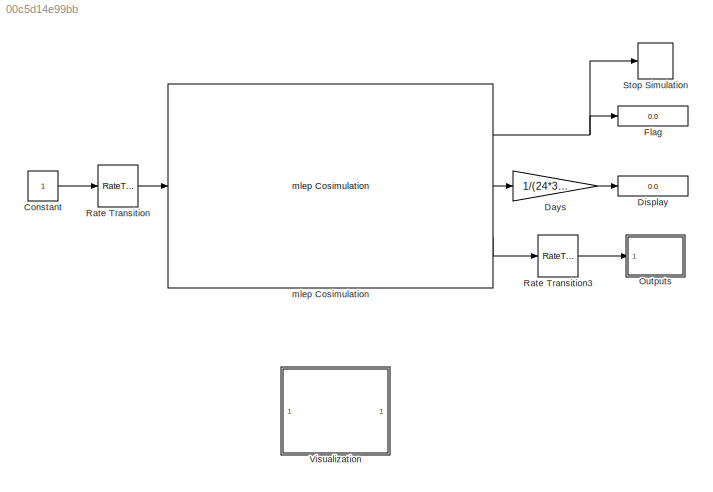
MODEL slx_00c5d14e99bb
KIND model
BLOCK [Constant] Constant
BLOCK [Gain] Days
  Gain = 1/(24*3600)
  OutDataTypeStr = Inherit: Inherit via internal rule
  ParamDataTypeStr = Inherit: Inherit via internal rule
  SaturateOnIntegerOverflow = off
BLOCK [Display] Display
  Decimation = 1
  Ports = [1]
BLOCK [Display] Flag
  Decimation = 1
  Ports = [1]
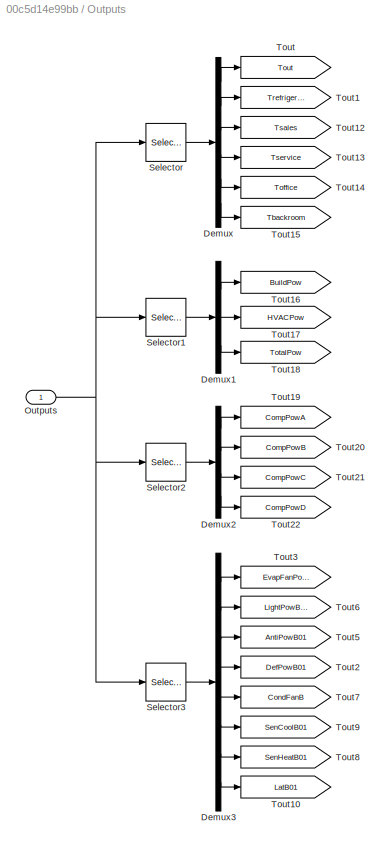
BLOCK [SubSystem] Outputs
  Ports = [1]
  RequestExecContextInheritance = off
BLOCK [Demux] Outputs/Demux
  DisplayOption = bar
  Outputs = 6
  Ports = [1, 6]
BLOCK [Demux] Outputs/Demux1
  DisplayOption = bar
  Outputs = 3
  Ports = [1, 3]
BLOCK [Demux] Outputs/Demux2
  DisplayOption = bar
  Ports = [1, 4]
BLOCK [Demux] Outputs/Demux3
  DisplayOption = bar
  Outputs = 8
  Ports = [1, 8]
BLOCK [Inport] Outputs/Outputs
  IconDisplay = Port number
BLOCK [Selector] Outputs/Selector
  Indices = [1:6]
  InputPortWidth = 21
  Ports = [1, 1]
BLOCK [Selector] Outputs/Selector1
  Indices = [7:9]
  InputPortWidth = 21
  Ports = [1, 1]
BLOCK [Selector] Outputs/Selector2
  Indices = [10:13]
  InputPortWidth = 21
  Ports = [1, 1]
BLOCK [Selector] Outputs/Selector3
  Indices = [14:21]
  InputPortWidth = 21
  Ports = [1, 1]
BLOCK [Goto] Outputs/Tout
  GotoTag = Tout
  TagVisibility = global
BLOCK [Goto] Outputs/Tout1
  GotoTag = Trefrigeration
  TagVisibility = global
BLOCK [Goto] Outputs/Tout10
  GotoTag = LatB01
  TagVisibility = global
BLOCK [Goto] Outputs/Tout12
  GotoTag = Tsales
  TagVisibility = global
BLOCK [Goto] Outputs/Tout13
  GotoTag = Tservice
  TagVisibility = global
BLOCK [Goto] Outputs/Tout14
  GotoTag = Toffice
  TagVisibility = global
BLOCK [Goto] Outputs/Tout15
  GotoTag = Tbackroom
  TagVisibility = global
BLOCK [Goto] Outputs/Tout16
  GotoTag = BuildPow
  TagVisibility = global
BLOCK [Goto] Outputs/Tout17
  GotoTag = HVACPow
  TagVisibility = global
BLOCK [Goto] Outputs/Tout18
  GotoTag = TotalPow
  TagVisibility = global
BLOCK [Goto] Outputs/Tout19
  GotoTag = CompPowA
  TagVisibility = global
BLOCK [Goto] Outputs/Tout2
  GotoTag = DefPowB01
  TagVisibility = global
BLOCK [Goto] Outputs/Tout20
  GotoTag = CompPowB
  TagVisibility = global
BLOCK [Goto] Outputs/Tout21
  GotoTag = CompPowC
  TagVisibility = global
BLOCK [Goto] Outputs/Tout22
  GotoTag = CompPowD
  TagVisibility = global
BLOCK [Goto] Outputs/Tout3
  GotoTag = EvapFanPowB01
  TagVisibility = global
BLOCK [Goto] Outputs/Tout5
  GotoTag = AntiPowB01
  TagVisibility = global
BLOCK [Goto] Outputs/Tout6
  GotoTag = LightPowB01
  TagVisibility = global
BLOCK [Goto] Outputs/Tout7
  GotoTag = CondFanB
  TagVisibility = global
BLOCK [Goto] Outputs/Tout8
  GotoTag = SenHeatB01
  TagVisibility = global
BLOCK [Goto] Outputs/Tout9
  GotoTag = SenCoolB01
  TagVisibility = global
BLOCK [RateTransition] Rate Transition
BLOCK [RateTransition] Rate Transition3
BLOCK [Stop] Stop Simulation
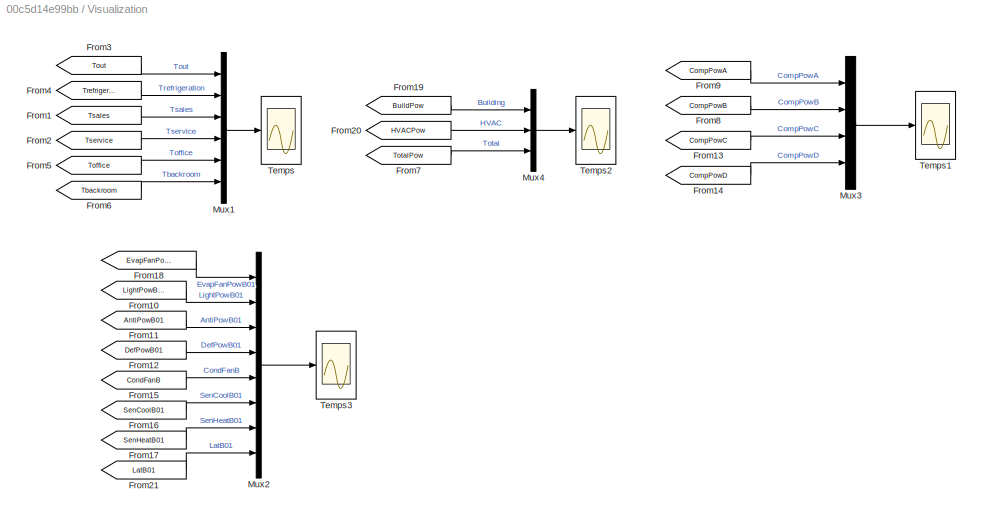
BLOCK [SubSystem] Visualization
  Ports = []
  RequestExecContextInheritance = off
BLOCK [From] Visualization/From1
  GotoTag = Tsales
  TagVisibility = global
BLOCK [From] Visualization/From10
  GotoTag = LightPowB01
  TagVisibility = global
BLOCK [From] Visualization/From11
  GotoTag = AntiPowB01
  TagVisibility = global
BLOCK [From] Visualization/From12
  GotoTag = DefPowB01
  TagVisibility = global
BLOCK [From] Visualization/From13
  GotoTag = CompPowC
  TagVisibility = global
BLOCK [From] Visualization/From14
  GotoTag = CompPowD
  TagVisibility = global
BLOCK [From] Visualization/From15
  GotoTag = CondFanB
  TagVisibility = global
BLOCK [From] Visualization/From16
  GotoTag = SenCoolB01
  TagVisibility = global
BLOCK [From] Visualization/From17
  GotoTag = SenHeatB01
  TagVisibility = global
BLOCK [From] Visualization/From18
  GotoTag = EvapFanPowB01
  TagVisibility = global
BLOCK [From] Visualization/From19
  GotoTag = BuildPow
  TagVisibility = global
BLOCK [From] Visualization/From2
  GotoTag = Tservice
  TagVisibility = global
BLOCK [From] Visualization/From20
  GotoTag = HVACPow
  TagVisibility = global
BLOCK [From] Visualization/From21
  GotoTag = LatB01
  TagVisibility = global
BLOCK [From] Visualization/From3
  GotoTag = Tout
  TagVisibility = global
BLOCK [From] Visualization/From4
  GotoTag = Trefrigeration
  TagVisibility = global
BLOCK [From] Visualization/From5
  GotoTag = Toffice
  TagVisibility = global
BLOCK [From] Visualization/From6
  GotoTag = Tbackroom
  TagVisibility = global
BLOCK [From] Visualization/From7
  GotoTag = TotalPow
  TagVisibility = global
BLOCK [From] Visualization/From8
  GotoTag = CompPowB
  TagVisibility = global
BLOCK [From] Visualization/From9
  GotoTag = CompPowA
  TagVisibility = global
BLOCK [Mux] Visualization/Mux1
  DisplayOption = bar
  Inputs = 6
  Ports = [6, 1]
BLOCK [Mux] Visualization/Mux2
  DisplayOption = bar
  Inputs = 8
  Ports = [8, 1]
BLOCK [Mux] Visualization/Mux3
  DisplayOption = bar
  Ports = [4, 1]
BLOCK [Mux] Visualization/Mux4
  DisplayOption = bar
  Inputs = 3
  Ports = [3, 1]
BLOCK [Scope] Visualization/Temps
  DataFormat = StructureWithTime
  Floating = off
  LegendLocations = 0.77282     0.83023     0.18057     0.11996
  LimitDataPoints = off
  NumInputPorts = 1
  Ports = [1]
  SampleTime = 0
  SaveName = ScopeData1
  ShowLegends = on
  TimeRange = 90000
  YMax = 35
  YMin = 10
BLOCK [Scope] Visualization/Temps1
  DataFormat = StructureWithTime
  Floating = off
  LegendLocations = 0.81975     0.86342     0.13364    0.084867
  LimitDataPoints = off
  NumInputPorts = 1
  Ports = [1]
  SampleTime = 0
  ShowLegends = on
  TimeRange = 90000
  YMax = 35000
  YMin = 0
BLOCK [Scope] Visualization/Temps2
  DataFormat = StructureWithTime
  Floating = off
  LegendLocations = 0.81737     0.88325      0.1354    0.065038
  LimitDataPoints = off
  NumInputPorts = 1
  Ports = [1]
  SampleTime = 0
  SaveName = ScopeData2
  ShowLegends = on
  TimeRange = 90000
  YMax = 600000
  YMin = 0
BLOCK [Scope] Visualization/Temps3
  DataFormat = StructureWithTime
  Floating = off
  LegendLocations = 0.7795     0.78411     0.17503     0.16418
  LimitDataPoints = off
  NumInputPorts = 1
  Ports = [1]
  SampleTime = 0
  SaveName = ScopeData3
  ShowLegends = on
  TimeRange = 90000
  YMax = 14000
  YMin = -2000
BLOCK [Reference] mlep Cosimulation  REF=refrigeration/mlep Cosimulation  (lib defined in slx_e5051c2510bc)
  Ports = [1, 3]
  SourceBlock = refrigeration/mlep Cosimulation
  SourceType = S-function: mlepCosim
  bcvtbpath = '<userpath>/Documents/git/mlep_v2.0/MLE+/bcvtb'
  idf = 'super_noSizing'
  numinput = 1
  numoutput = 21
  progname = 'runenergyplus'
  step = 300
  timeout = 2000
  weather = 'USA_FL_Miami.Intl.AP.722020_TMY3'
LINE Constant:1 -> Rate Transition:1
LINE Days:1 -> Display:1
LINE Outputs/Demux1:1 -> Outputs/Tout16:1
LINE Outputs/Demux1:2 -> Outputs/Tout17:1
LINE Outputs/Demux1:3 -> Outputs/Tout18:1
LINE Outputs/Demux2:1 -> Outputs/Tout19:1
LINE Outputs/Demux2:2 -> Outputs/Tout20:1
LINE Outputs/Demux2:3 -> Outputs/Tout21:1
LINE Outputs/Demux2:4 -> Outputs/Tout22:1
LINE Outputs/Demux3:1 -> Outputs/Tout3:1
LINE Outputs/Demux3:2 -> Outputs/Tout6:1
LINE Outputs/Demux3:3 -> Outputs/Tout5:1
LINE Outputs/Demux3:4 -> Outputs/Tout2:1
LINE Outputs/Demux3:5 -> Outputs/Tout7:1
LINE Outputs/Demux3:6 -> Outputs/Tout9:1
LINE Outputs/Demux3:7 -> Outputs/Tout8:1
LINE Outputs/Demux3:8 -> Outputs/Tout10:1
LINE Outputs/Demux:1 -> Outputs/Tout:1
LINE Outputs/Demux:2 -> Outputs/Tout1:1
LINE Outputs/Demux:3 -> Outputs/Tout12:1
LINE Outputs/Demux:4 -> Outputs/Tout13:1
LINE Outputs/Demux:5 -> Outputs/Tout14:1
LINE Outputs/Demux:6 -> Outputs/Tout15:1
NET Outputs/Outputs:1 -> Outputs/Selector1:1, Outputs/Selector2:1, Outputs/Selector3:1, Outputs/Selector:1
LINE Outputs/Selector1:1 -> Outputs/Demux1:1
LINE Outputs/Selector2:1 -> Outputs/Demux2:1
LINE Outputs/Selector3:1 -> Outputs/Demux3:1
LINE Outputs/Selector:1 -> Outputs/Demux:1
LINE Rate Transition3:1 -> Outputs:1
LINE Rate Transition:1 -> mlep Cosimulation:1
LINE Visualization/From10:1 -> Visualization/Mux2:2
LINE Visualization/From11:1 -> Visualization/Mux2:3
LINE Visualization/From12:1 -> Visualization/Mux2:4
LINE Visualization/From13:1 -> Visualization/Mux3:3
LINE Visualization/From14:1 -> Visualization/Mux3:4
LINE Visualization/From15:1 -> Visualization/Mux2:5
LINE Visualization/From16:1 -> Visualization/Mux2:6
LINE Visualization/From17:1 -> Visualization/Mux2:7
LINE Visualization/From18:1 -> Visualization/Mux2:1
LINE Visualization/From19:1 -> Visualization/Mux4:1
LINE Visualization/From1:1 -> Visualization/Mux1:3
LINE Visualization/From20:1 -> Visualization/Mux4:2
LINE Visualization/From21:1 -> Visualization/Mux2:8
LINE Visualization/From2:1 -> Visualization/Mux1:4
LINE Visualization/From3:1 -> Visualization/Mux1:1
LINE Visualization/From4:1 -> Visualization/Mux1:2
LINE Visualization/From5:1 -> Visualization/Mux1:5
LINE Visualization/From6:1 -> Visualization/Mux1:6
LINE Visualization/From7:1 -> Visualization/Mux4:3
LINE Visualization/From8:1 -> Visualization/Mux3:2
LINE Visualization/From9:1 -> Visualization/Mux3:1
LINE Visualization/Mux1:1 -> Visualization/Temps:1
LINE Visualization/Mux2:1 -> Visualization/Temps3:1
LINE Visualization/Mux3:1 -> Visualization/Temps1:1
LINE Visualization/Mux4:1 -> Visualization/Temps2:1
NET mlep Cosimulation:1 -> Flag:1, Stop Simulation:1
LINE mlep Cosimulation:2 -> Days:1
LINE mlep Cosimulation:3 -> Rate Transition3:1
note: NET lines group one-source signal fan-out (src -> all destinations, sorted); 1:1 wires keep LINE
